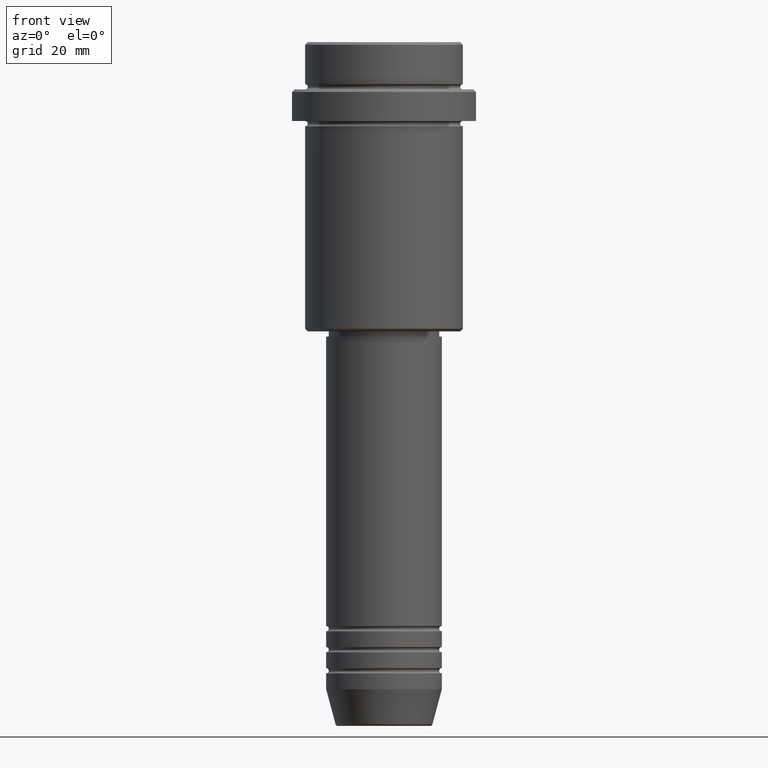
[diagram: clean part render]
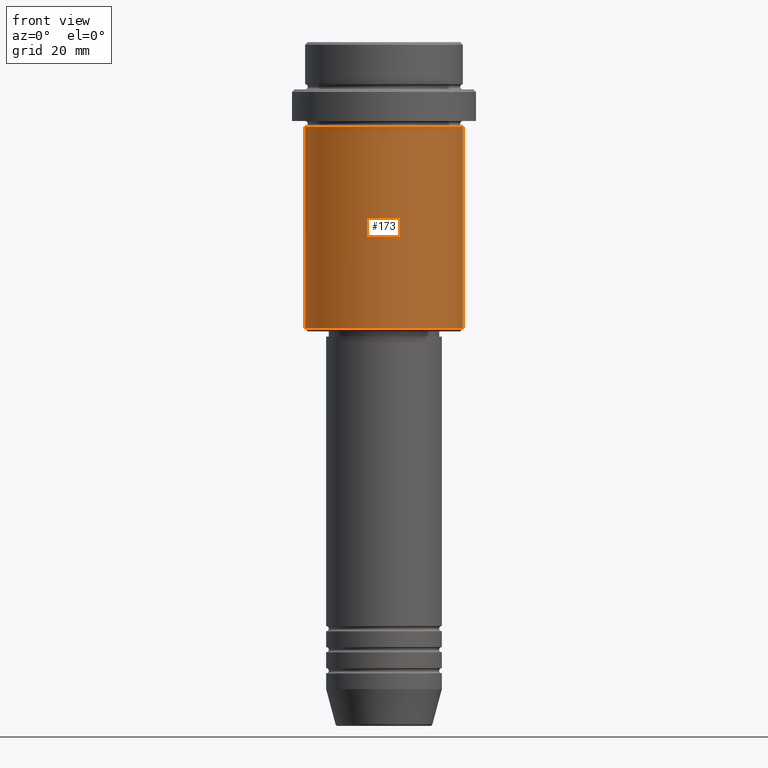
[diagram: same view with one face highlighted and labeled with its STEP entity id]
A machine part, front view. The second image highlights one B-rep face of the part: STEP entity #173.
In plain terms, the highlighted cylindrical surface (partial cylindrical patch) has radius 15 mm, axis along (-0, -0, 1).
Its self-contained STEP definition (entity closure, byte-faithful):
#16 = CARTESIAN_POINT ( 'NONE',  ( 0.000000000000000000, 0.000000000000000000, 0.000000000000000000 ) ) ;
#49 = DIRECTION ( 'NONE',  ( -0.000000000000000000, -0.000000000000000000, 1.000000000000000000 ) ) ;
#62 = CIRCLE ( 'NONE', #388, 15.00000000000000178 ) ;
#117 = CARTESIAN_POINT ( 'NONE',  ( -15.00000000000000000, 1.836970198721029589E-15, 0.000000000000000000 ) ) ;
#135 = DIRECTION ( 'NONE',  ( 1.000000000000000000, 0.000000000000000000, 0.000000000000000000 ) ) ;
#157 = FACE_OUTER_BOUND ( 'NONE', #1415, .T. ) ;
#173 = ADVANCED_FACE ( 'NONE', ( #157 ), #1031, .T. ) ;
#180 = CIRCLE ( 'NONE', #316, 15.00000000000000000 ) ;
#232 = EDGE_CURVE ( 'NONE', #709, #567, #180, .T. ) ;
#248 = VECTOR ( 'NONE', #511, 1000.000000000000000 ) ;
#316 = AXIS2_PLACEMENT_3D ( 'NONE', #1038, #1395, #1285 ) ;
#327 = ORIENTED_EDGE ( 'NONE', *, *, #692, .T. ) ;
#330 = VERTEX_POINT ( 'NONE', #1164 ) ;
#388 = AXIS2_PLACEMENT_3D ( 'NONE', #1173, #557, #1309 ) ;
#406 = CARTESIAN_POINT ( 'NONE',  ( 15.00000000000000000, 0.000000000000000000, 0.000000000000000000 ) ) ;
#412 = EDGE_CURVE ( 'NONE', #714, #330, #62, .T. ) ;
#420 = ORIENTED_EDGE ( 'NONE', *, *, #232, .T. ) ;
#511 = DIRECTION ( 'NONE',  ( -0.000000000000000000, -0.000000000000000000, 1.000000000000000000 ) ) ;
#557 = DIRECTION ( 'NONE',  ( -0.000000000000000000, -0.000000000000000000, 1.000000000000000000 ) ) ;
#567 = VERTEX_POINT ( 'NONE', #914 ) ;
#600 = ORIENTED_EDGE ( 'NONE', *, *, #412, .F. ) ;
#683 = VECTOR ( 'NONE', #1316, 1000.000000000000000 ) ;
#692 = EDGE_CURVE ( 'NONE', #567, #330, #1145, .T. ) ;
#709 = VERTEX_POINT ( 'NONE', #1383 ) ;
#714 = VERTEX_POINT ( 'NONE', #1355 ) ;
#788 = AXIS2_PLACEMENT_3D ( 'NONE', #16, #49, #135 ) ;
#805 = ORIENTED_EDGE ( 'NONE', *, *, #1303, .F. ) ;
#914 = CARTESIAN_POINT ( 'NONE',  ( 15.00000000000000000, 0.000000000000000000, -54.50000000000000711 ) ) ;
#994 = LINE ( 'NONE', #117, #683 ) ;
#1031 = CYLINDRICAL_SURFACE ( 'NONE', #788, 15.00000000000000000 ) ;
#1038 = CARTESIAN_POINT ( 'NONE',  ( 0.000000000000000000, 0.000000000000000000, -54.50000000000000711 ) ) ;
#1145 = LINE ( 'NONE', #406, #248 ) ;
#1164 = CARTESIAN_POINT ( 'NONE',  ( 15.00000000000000178, 0.000000000000000000, -16.00000000000000000 ) ) ;
#1173 = CARTESIAN_POINT ( 'NONE',  ( 0.000000000000000000, 0.000000000000000000, -16.00000000000000000 ) ) ;
#1285 = DIRECTION ( 'NONE',  ( -1.000000000000000000, 0.000000000000000000, 0.000000000000000000 ) ) ;
#1303 = EDGE_CURVE ( 'NONE', #709, #714, #994, .T. ) ;
#1309 = DIRECTION ( 'NONE',  ( 1.000000000000000000, 0.000000000000000000, 0.000000000000000000 ) ) ;
#1316 = DIRECTION ( 'NONE',  ( -0.000000000000000000, -0.000000000000000000, 1.000000000000000000 ) ) ;
#1355 = CARTESIAN_POINT ( 'NONE',  ( -15.00000000000000355, 1.836970198721029983E-15, -16.00000000000000000 ) ) ;
#1383 = CARTESIAN_POINT ( 'NONE',  ( -15.00000000000000000, 1.836970198721029589E-15, -54.50000000000000711 ) ) ;
#1395 = DIRECTION ( 'NONE',  ( -0.000000000000000000, -0.000000000000000000, 1.000000000000000000 ) ) ;
#1415 = EDGE_LOOP ( 'NONE', ( #805, #420, #327, #600 ) ) ;